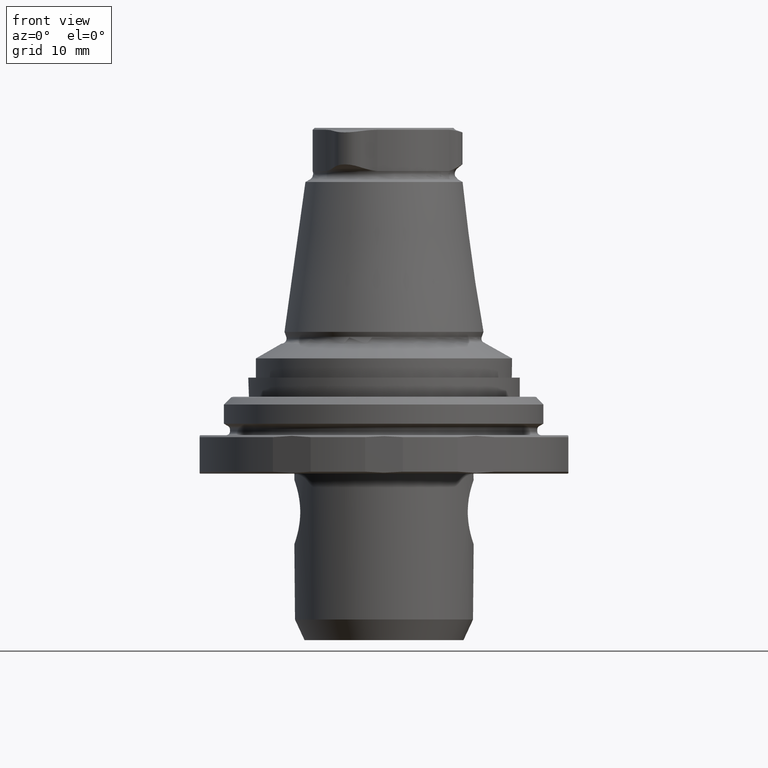
[diagram: clean part render]
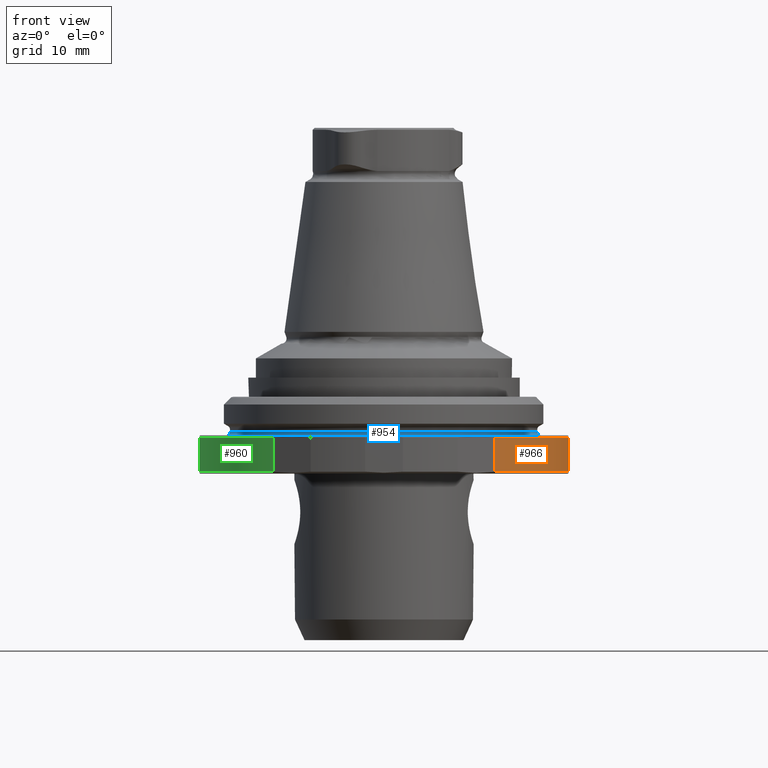
[diagram: same view with three faces highlighted in distinct colors, each labeled with its STEP entity id]
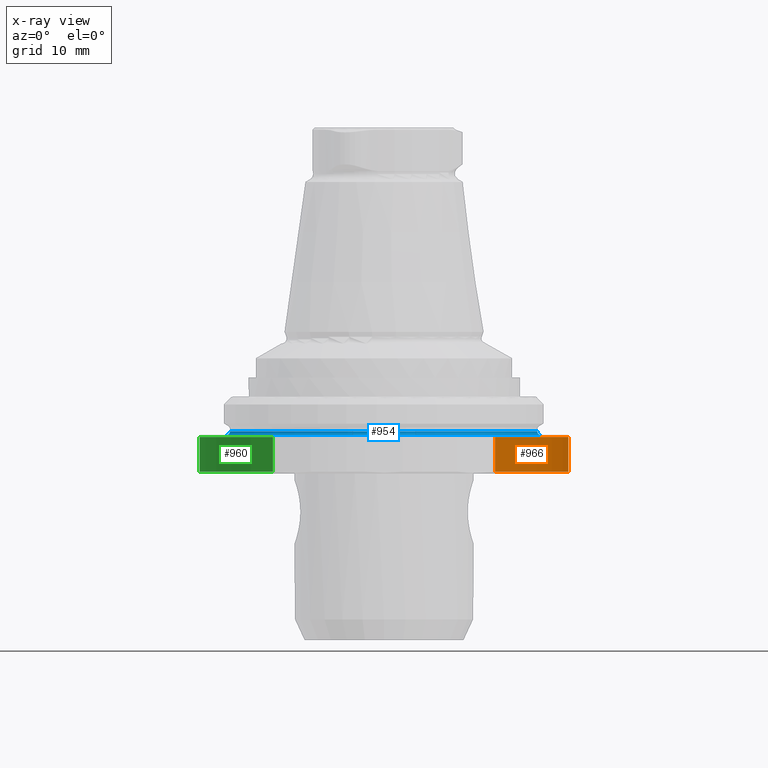
[diagram: x-ray of the same camera — body ghosted, the three highlighted faces saturated]
A machine part, front view with three faces highlighted in distinct colors.
The next image is the same camera in x-ray (body ghosted, the three faces saturated) — at least one of them is partly hidden behind the body in this view.
Their STEP definitions:

[orange] entity #966 — the highlighted cylindrical surface (partial cylindrical patch) has radius 29 mm, axis along (-0, -0, -1).
#63=LINE('',#1790,#91);
#64=LINE('',#1794,#92);
#91=VECTOR('',#1334,1000.);
#92=VECTOR('',#1339,1000.);
#155=CIRCLE('',#1077,29.);
#161=CIRCLE('',#1093,29.);
#363=ORIENTED_EDGE('',*,*,#533,.F.);
#364=ORIENTED_EDGE('',*,*,#534,.T.);
#365=ORIENTED_EDGE('',*,*,#510,.T.);
#366=ORIENTED_EDGE('',*,*,#532,.T.);
#510=EDGE_CURVE('',#620,#619,#155,.T.);
#532=EDGE_CURVE('',#619,#632,#63,.T.);
#533=EDGE_CURVE('',#633,#632,#161,.T.);
#534=EDGE_CURVE('',#633,#620,#64,.F.);
#619=VERTEX_POINT('',#1724);
#620=VERTEX_POINT('',#1726);
#632=VERTEX_POINT('',#1789);
#633=VERTEX_POINT('',#1793);
#761=EDGE_LOOP('',(#363,#364,#365,#366));
#861=FACE_BOUND('',#761,.T.);
#910=CYLINDRICAL_SURFACE('',#1092,29.);
#966=ADVANCED_FACE('',(#861),#910,.T.);
#1077=AXIS2_PLACEMENT_3D('',#1725,#1295,#1296);
#1092=AXIS2_PLACEMENT_3D('',#1791,#1335,#1336);
#1093=AXIS2_PLACEMENT_3D('',#1792,#1337,#1338);
#1295=DIRECTION('',(-5.20001084984554E-33,-4.76419527885826E-18,-1.));
#1296=DIRECTION('',(-1.,0.,0.));
#1334=DIRECTION('',(-5.20001084984554E-33,-4.76419527885825E-18,-1.));
#1335=DIRECTION('',(-5.20001084984554E-33,-4.76419527885826E-18,-1.));
#1336=DIRECTION('',(-1.,0.,0.));
#1337=DIRECTION('',(-5.20001084984554E-33,-4.76419527885826E-18,-1.));
#1338=DIRECTION('',(-1.,0.,0.));
#1339=DIRECTION('',(-5.20001084984554E-33,-4.76419527885826E-18,-1.));
#1724=CARTESIAN_POINT('',(17.3444863728671,-23.2415316289918,-1.3));
#1725=CARTESIAN_POINT('',(-1.56000325495366E-33,-1.42925858365748E-18,-1.3));
#1726=CARTESIAN_POINT('',(28.8,-3.39999999999998,-1.3));
#1789=CARTESIAN_POINT('',(17.3444863728671,-23.2415316289918,-6.7));
#1790=CARTESIAN_POINT('',(17.3444863728671,-23.2415316289918,-1.));
#1791=CARTESIAN_POINT('',(0.,0.,-1.));
#1792=CARTESIAN_POINT('',(-2.96400618441196E-32,-2.7155913089492E-17,-6.7));
#1793=CARTESIAN_POINT('',(28.8,-3.39999999999998,-6.7));
#1794=CARTESIAN_POINT('',(28.8,-3.39999999999998,-1.));

[blue] entity #954 — the highlighted toroidal blend (fillet) surface has major radius 24.65 mm and minor (blend) radius 0.6 mm.
#24=TOROIDAL_SURFACE('',#1066,24.65,0.6);
#138=CIRCLE('',#1049,24.05);
#147=CIRCLE('',#1067,24.65);
#306=ORIENTED_EDGE('',*,*,#496,.F.);
#307=ORIENTED_EDGE('',*,*,#487,.T.);
#487=EDGE_CURVE('',#596,#596,#138,.T.);
#496=EDGE_CURVE('',#605,#605,#147,.T.);
#596=VERTEX_POINT('',#1650);
#605=VERTEX_POINT('',#1677);
#746=EDGE_LOOP('',(#306));
#747=EDGE_LOOP('',(#307));
#846=FACE_BOUND('',#746,.T.);
#847=FACE_BOUND('',#747,.T.);
#954=ADVANCED_FACE('',(#846,#847),#24,.F.);
#1049=AXIS2_PLACEMENT_3D('',#1649,#1239,#1240);
#1066=AXIS2_PLACEMENT_3D('',#1675,#1273,#1274);
#1067=AXIS2_PLACEMENT_3D('',#1676,#1275,#1276);
#1239=DIRECTION('',(-5.20001084984554E-33,-4.76419527885826E-18,-1.));
#1240=DIRECTION('',(-1.,0.,0.));
#1273=DIRECTION('',(-5.20001084984554E-33,-4.76419527885826E-18,-1.));
#1274=DIRECTION('',(-1.,0.,0.));
#1275=DIRECTION('',(-5.20001084984554E-33,-4.76419527885826E-18,-1.));
#1276=DIRECTION('',(-1.,0.,0.));
#1649=CARTESIAN_POINT('',(3.12000650990732E-33,2.85851716731495E-18,-0.400000000000005));
#1650=CARTESIAN_POINT('',(-24.05,2.85851716731495E-18,-0.400000000000005));
#1675=CARTESIAN_POINT('',(3.12000650990732E-33,2.85851716731495E-18,-0.400000000000005));
#1676=CARTESIAN_POINT('',(0.,0.,-1.));
#1677=CARTESIAN_POINT('',(-24.65,0.,-1.));

[green] entity #960 — the highlighted cylindrical surface (partial cylindrical patch) has radius 29 mm, axis along (-0, -0, -1).
#57=LINE('',#1757,#85);
#58=LINE('',#1761,#86);
#85=VECTOR('',#1310,1000.);
#86=VECTOR('',#1315,1000.);
#152=CIRCLE('',#1074,29.);
#158=CIRCLE('',#1084,29.);
#339=ORIENTED_EDGE('',*,*,#521,.F.);
#340=ORIENTED_EDGE('',*,*,#522,.T.);
#341=ORIENTED_EDGE('',*,*,#504,.T.);
#342=ORIENTED_EDGE('',*,*,#520,.T.);
#504=EDGE_CURVE('',#614,#613,#152,.T.);
#520=EDGE_CURVE('',#613,#626,#57,.T.);
#521=EDGE_CURVE('',#627,#626,#158,.T.);
#522=EDGE_CURVE('',#627,#614,#58,.F.);
#613=VERTEX_POINT('',#1703);
#614=VERTEX_POINT('',#1705);
#626=VERTEX_POINT('',#1756);
#627=VERTEX_POINT('',#1760);
#755=EDGE_LOOP('',(#339,#340,#341,#342));
#855=FACE_BOUND('',#755,.T.);
#907=CYLINDRICAL_SURFACE('',#1083,29.);
#960=ADVANCED_FACE('',(#855),#907,.T.);
#1074=AXIS2_PLACEMENT_3D('',#1704,#1289,#1290);
#1083=AXIS2_PLACEMENT_3D('',#1758,#1311,#1312);
#1084=AXIS2_PLACEMENT_3D('',#1759,#1313,#1314);
#1289=DIRECTION('',(-5.20001084984554E-33,-4.76419527885826E-18,-1.));
#1290=DIRECTION('',(-1.,0.,0.));
#1310=DIRECTION('',(-5.20001084984554E-33,-4.76419527885826E-18,-1.));
#1311=DIRECTION('',(-5.20001084984554E-33,-4.76419527885826E-18,-1.));
#1312=DIRECTION('',(-1.,0.,0.));
#1313=DIRECTION('',(-5.20001084984554E-33,-4.76419527885826E-18,-1.));
#1314=DIRECTION('',(-1.,0.,0.));
#1315=DIRECTION('',(-5.20001084984554E-33,-4.76419527885826E-18,-1.));
#1703=CARTESIAN_POINT('',(-28.8,-3.39999999999998,-1.3));
#1704=CARTESIAN_POINT('',(-1.56000325495366E-33,-1.42925858365748E-18,-1.3));
#1705=CARTESIAN_POINT('',(-17.3444863728671,-23.2415316289919,-1.3));
#1756=CARTESIAN_POINT('',(-28.8,-3.39999999999998,-6.7));
#1757=CARTESIAN_POINT('',(-28.8,-3.39999999999998,-1.));
#1758=CARTESIAN_POINT('',(0.,0.,-1.));
#1759=CARTESIAN_POINT('',(-2.96400618441196E-32,-2.7155913089492E-17,-6.7));
#1760=CARTESIAN_POINT('',(-17.3444863728671,-23.2415316289919,-6.7));
#1761=CARTESIAN_POINT('',(-17.3444863728671,-23.2415316289919,-1.));